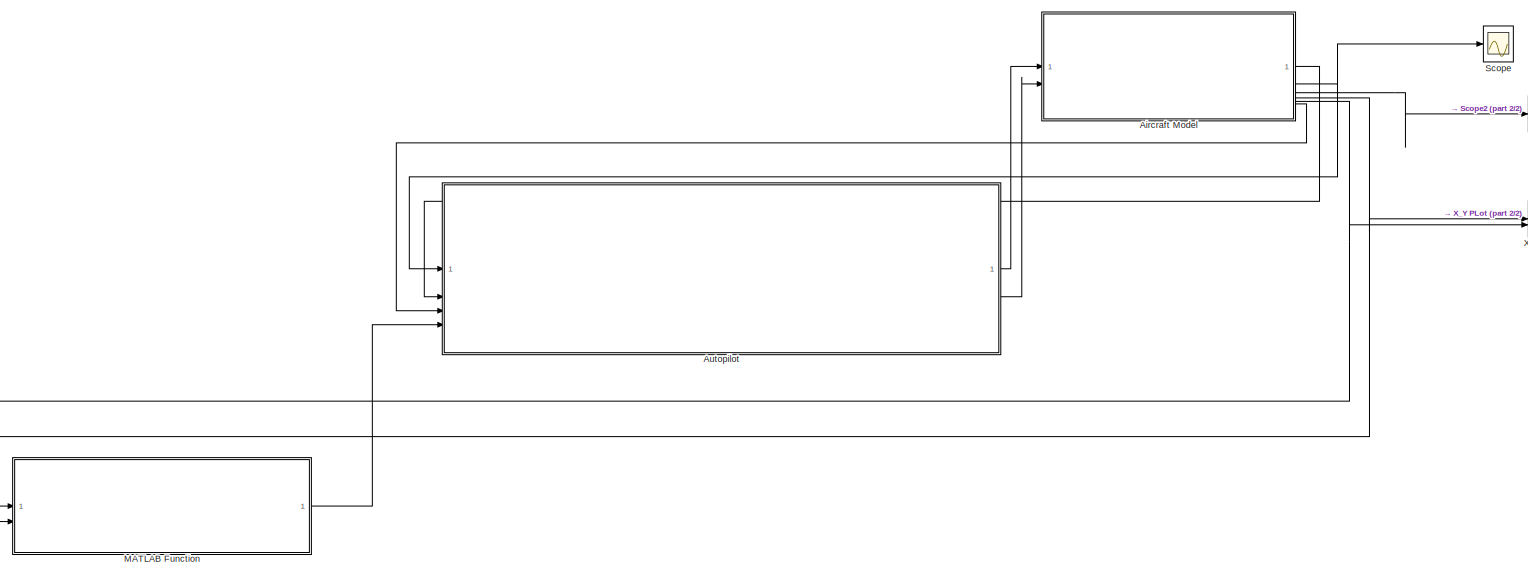
[diagram: root canvas - part 1/2, most of the canvas]
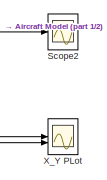
[diagram: root canvas - part 2/2, top right region]
MODEL slx_1c43ff69d4d4
KIND model
CONFIG AbsTol = auto
CONFIG EnableMultiTasking = off
CONFIG FixedStep = auto
CONFIG MaxStep = auto
CONFIG MinStep = auto
CONFIG RelTol = 1e-3
CONFIG SampleTimeConstraint = Unconstrained
CONFIG SolverName = ode45
CONFIG StartTime = 0.0
CONFIG StopTime = 1500
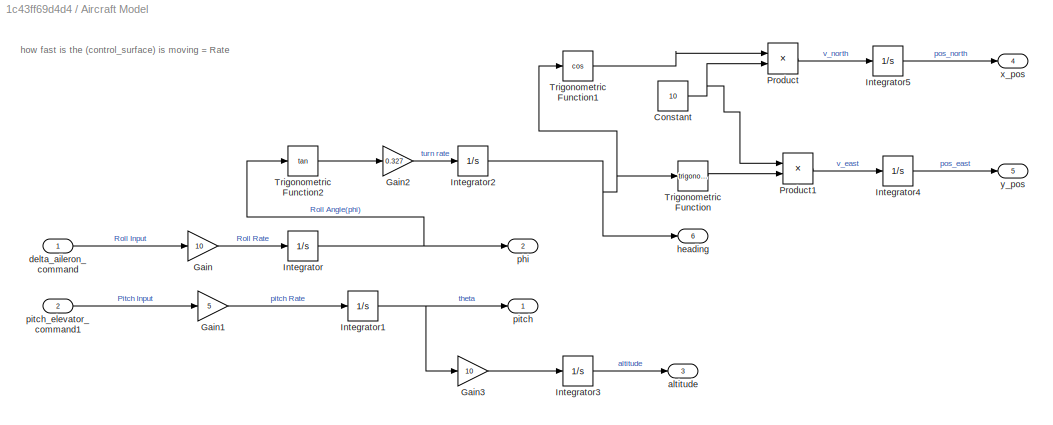
BLOCK [SubSystem] Aircraft Model
BLOCK [Constant] Aircraft Model/Constant
  Value = 10
BLOCK [Gain] Aircraft Model/Gain
  Gain = 10
BLOCK [Gain] Aircraft Model/Gain1
  Gain = 5
BLOCK [Gain] Aircraft Model/Gain2
  Gain = 0.327
BLOCK [Gain] Aircraft Model/Gain3
  Gain = 10
BLOCK [Integrator] Aircraft Model/Integrator
BLOCK [Integrator] Aircraft Model/Integrator1
BLOCK [Integrator] Aircraft Model/Integrator2
BLOCK [Integrator] Aircraft Model/Integrator3
BLOCK [Integrator] Aircraft Model/Integrator4
BLOCK [Integrator] Aircraft Model/Integrator5
BLOCK [Product] Aircraft Model/Product
BLOCK [Product] Aircraft Model/Product1
BLOCK [Trigonometry] Aircraft Model/Trigonometric Function
BLOCK [Trigonometry] Aircraft Model/Trigonometric Function1
  Operator = cos
BLOCK [Trigonometry] Aircraft Model/Trigonometric Function2
  Operator = tan
BLOCK [Outport] Aircraft Model/altitude
  Port = 3
BLOCK [Inport] Aircraft Model/delta_aileron_command
BLOCK [Outport] Aircraft Model/heading
  Port = 6
BLOCK [Outport] Aircraft Model/phi
  Port = 2
BLOCK [Outport] Aircraft Model/pitch
BLOCK [Inport] Aircraft Model/pitch_elevator_command1
  Port = 2
BLOCK [Outport] Aircraft Model/x_pos
  Port = 4
BLOCK [Outport] Aircraft Model/y_pos
  Port = 5
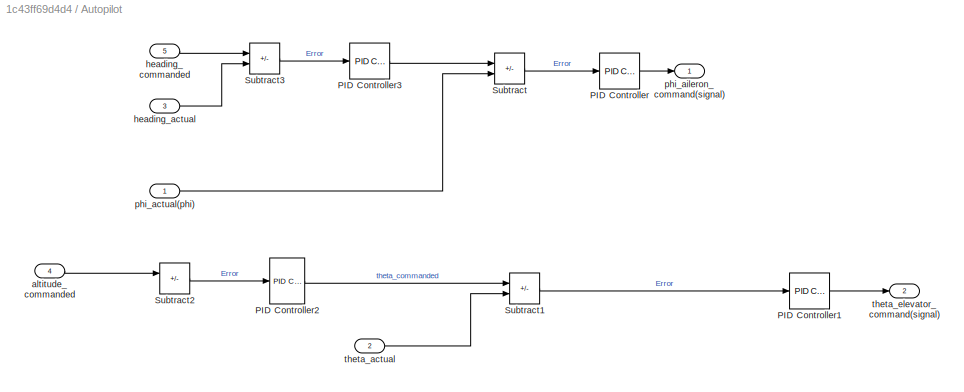
BLOCK [SubSystem] Autopilot
BLOCK [Reference] Autopilot/PID Controller  REF=slpidlib/PID Controller
  LibrarySourceBlock = simulink/Continuous/PID Controller
  SourceBlock = slpidlib/PID Controller
  SourceType = PID 1dof
BLOCK [Reference] Autopilot/PID Controller1  REF=slpidlib/PID Controller
  LibrarySourceBlock = simulink/Continuous/PID Controller
  SourceBlock = slpidlib/PID Controller
  SourceType = PID 1dof
BLOCK [Reference] Autopilot/PID Controller2  REF=slpidlib/PID Controller
  LibrarySourceBlock = simulink/Continuous/PID Controller
  SourceBlock = slpidlib/PID Controller
  SourceType = PID 1dof
BLOCK [Reference] Autopilot/PID Controller3  REF=slpidlib/PID Controller
  LibrarySourceBlock = simulink/Continuous/PID Controller
  SourceBlock = slpidlib/PID Controller
  SourceType = PID 1dof
BLOCK [Sum] Autopilot/Subtract
  IconShape = rectangular
  Inputs = +-
BLOCK [Sum] Autopilot/Subtract1
  IconShape = rectangular
  Inputs = +-
BLOCK [Sum] Autopilot/Subtract2
  IconShape = rectangular
  Inputs = +-
BLOCK [Sum] Autopilot/Subtract3
  IconShape = rectangular
  Inputs = +-
BLOCK [Inport] Autopilot/altitude_commanded
  Port = 4
BLOCK [Inport] Autopilot/heading_actual
  Port = 3
BLOCK [Inport] Autopilot/heading_commanded
  Port = 5
BLOCK [Inport] Autopilot/phi_actual(phi)
BLOCK [Outport] Autopilot/phi_aileron_command(signal)
  NameLocation = right
BLOCK [Inport] Autopilot/theta_actual
  Port = 2
BLOCK [Outport] Autopilot/theta_elevator_command(signal)
  NameLocation = right
  Port = 2
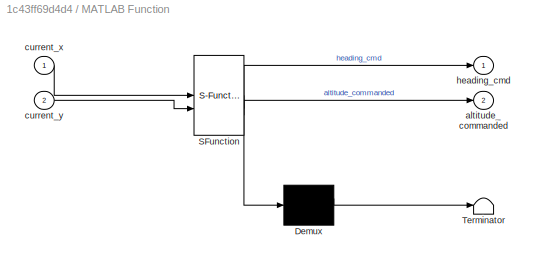
BLOCK [SubSystem] MATLAB Function
  ErrorFcn = Stateflow.Translate.translate
  PermitHierarchicalResolution = ExplicitOnly
  SFBlockType = MATLAB Function
  TreatAsAtomicUnit = on
BLOCK [Demux] MATLAB Function/ Demux 
  Outputs = 1
BLOCK [S-Function] MATLAB Function/ SFunction 
  EnableBusSupport = off
  FunctionName = sf_sfun
  PortCounts = [2 3]
  SFcnIsStateOwnerBlock = off
  SFunctionDeploymentMode = off
  Tag = Stateflow S-Function 2
BLOCK [Terminator] MATLAB Function/ Terminator 
BLOCK [Outport] MATLAB Function/altitude_commanded
  Port = 2
BLOCK [Inport] MATLAB Function/current_x
BLOCK [Inport] MATLAB Function/current_y
  Port = 2
BLOCK [Outport] MATLAB Function/heading_cmd
BLOCK [Scope] Scope
  ActiveDisplayYMaximum = 1
  ActiveDisplayYMinimum = -1
  Floating = off
  GraphicalSettings = {"AxesScalingProperties":{"AlignXAxis":"Center","AlignYAxis":"Center","AutoScaleXAxisLimits":false,"AxesScaling":"Manual","AxesScalingNumUpdates":10,"ExpandOnly":true,"ScaleAxesLimitsAtStop":false,"XAxisDataRange":100,"YAxisDataRange":80},"DisplayProperties":{"ColorOrder":["auto","auto","auto","auto","auto","auto","auto","auto","auto","auto","auto","auto","auto","auto","auto","auto","auto","auto",...<+1950ch>
  MultipleDisplayCache = [{"MaxYLimMag":1,"MaxYLimReal":1,"MinYLimMag":0,"MinYLimReal":-1,"PlotAsMagnitudePhase":false,"ShowGrid":true,"ShowLegend":true,"Title":"%<SignalLabel>","YLabel":""}]
  NumInputPorts = 1
  ScopeFrameLocation = window
  ShowLegend = on
  WasSavedAsWebScope = on
  WindowPosition = [0.000000,36.000000,1536.000000,793.000000,]
BLOCK [Scope] Scope2
  ActiveDisplayYMaximum = 671.14804445895015
  ActiveDisplayYMinimum = -74.572004939883342
  DataLoggingVariableName = ScopeData2
  Floating = off
  GraphicalSettings = {"Style":{"BackgroundColor":[0.12941176470588237,0.12941176470588237,0.12941176470588237],"AxesColor":[0.07058823529411765,0.07058823529411765,0.07058823529411765],"LabelsColor":[0.8509803921568627,0.8509803921568627,0.8509803921568627],"PreserveColors":false,"Visible":[true],"LineStyle":["-"],"LineWidth":[1.5],"BarWidth":[0.9],"LineColor":["auto"],"LineFaceAlpha":[1],"LineEdgeAlpha":[1],"Marker":...<+2023ch>
  MultipleDisplayCache = [{"MaxYLimMag":671.14804445895015,"MaxYLimReal":671.14804445895015,"MinYLimMag":0,"MinYLimReal":-74.572004939883342,"PlotAsMagnitudePhase":false,"ShowGrid":true,"ShowLegend":true,"Title":"%<SignalLabel>","YLabel":""}]
  NumInputPorts = 1
  ScopeFrameLocation = window
  ShowLegend = on
  WasSavedAsWebScope = on
  WindowPosition = [0.000000,36.000000,1536.000000,793.000000,]
BLOCK [Scope] X_Y PLot
  ActiveDisplayYMaximum = 1698.3486849221656
  ActiveDisplayYMinimum = -47.144413180148149
  DataLoggingVariableName = ScopeData1
  Floating = off
  GraphicalSettings = {"AxesScalingProperties":{"AlignXAxis":"Center","AlignYAxis":"Center","AutoScaleXAxisLimits":false,"AxesScaling":"Manual","AxesScalingNumUpdates":10,"ExpandOnly":true,"ScaleAxesLimitsAtStop":false,"XAxisDataRange":100,"YAxisDataRange":80},"DisplayProperties":{"ColorOrder":["auto","auto","auto","auto","auto","auto","auto","auto","auto","auto","auto","auto","auto","auto","auto","auto","auto","auto",...<+2187ch>
  MultipleDisplayCache = [{"MaxYLimMag":1698.3486849221656,"MaxYLimReal":1698.3486849221656,"MinYLimMag":0,"MinYLimReal":-47.144413180148149,"PlotAsMagnitudePhase":false,"ShowGrid":true,"ShowLegend":true,"Title":"%<SignalLabel>","YLabel":""}]
  NumInputPorts = 2
  ScopeFrameLocation = window
  ShowLegend = on
  WasSavedAsWebScope = on
  WindowPosition = [0.000000,36.000000,1536.000000,793.000000,]
ANNOTATION Aircraft Model: how fast is the (control_surface) is moving = Rate
NET Aircraft Model/Constant:1 -> Aircraft Model/Product1:1, Aircraft Model/Product:2
LINE Aircraft Model/Gain1:1 -> Aircraft Model/Integrator1:1
LINE Aircraft Model/Gain2:1 -> Aircraft Model/Integrator2:1
LINE Aircraft Model/Gain3:1 -> Aircraft Model/Integrator3:1
LINE Aircraft Model/Gain:1 -> Aircraft Model/Integrator:1
NET Aircraft Model/Integrator1:1 -> Aircraft Model/Gain3:1, Aircraft Model/pitch:1
NET Aircraft Model/Integrator2:1 -> Aircraft Model/Trigonometric Function1:1, Aircraft Model/Trigonometric Function:1, Aircraft Model/heading:1
LINE Aircraft Model/Integrator3:1 -> Aircraft Model/altitude:1
LINE Aircraft Model/Integrator4:1 -> Aircraft Model/y_pos:1
LINE Aircraft Model/Integrator5:1 -> Aircraft Model/x_pos:1
NET Aircraft Model/Integrator:1 -> Aircraft Model/Trigonometric Function2:1, Aircraft Model/phi:1
LINE Aircraft Model/Product1:1 -> Aircraft Model/Integrator4:1
LINE Aircraft Model/Product:1 -> Aircraft Model/Integrator5:1
LINE Aircraft Model/Trigonometric Function1:1 -> Aircraft Model/Product:1
LINE Aircraft Model/Trigonometric Function2:1 -> Aircraft Model/Gain2:1
LINE Aircraft Model/Trigonometric Function:1 -> Aircraft Model/Product1:2
LINE Aircraft Model/delta_aileron_command:1 -> Aircraft Model/Gain:1
LINE Aircraft Model/pitch_elevator_command1:1 -> Aircraft Model/Gain1:1
LINE Aircraft Model:1 -> Autopilot:2
NET Aircraft Model:2 -> Autopilot:1, Scope:1
LINE Aircraft Model:3 -> Scope2:1
NET Aircraft Model:4 -> MATLAB Function:1, X_Y PLot:1
NET Aircraft Model:5 -> MATLAB Function:2, X_Y PLot:2
LINE Aircraft Model:6 -> Autopilot:3
LINE Autopilot/PID Controller1:1 -> Autopilot/theta_elevator_command(signal):1
LINE Autopilot/PID Controller2:1 -> Autopilot/Subtract1:1
LINE Autopilot/PID Controller3:1 -> Autopilot/Subtract:1
LINE Autopilot/PID Controller:1 -> Autopilot/phi_aileron_command(signal):1
LINE Autopilot/Subtract1:1 -> Autopilot/PID Controller1:1
LINE Autopilot/Subtract2:1 -> Autopilot/PID Controller2:1
LINE Autopilot/Subtract3:1 -> Autopilot/PID Controller3:1
LINE Autopilot/Subtract:1 -> Autopilot/PID Controller:1
LINE Autopilot/altitude_commanded:1 -> Autopilot/Subtract2:1
LINE Autopilot/heading_actual:1 -> Autopilot/Subtract3:2
LINE Autopilot/heading_commanded:1 -> Autopilot/Subtract3:1
LINE Autopilot/phi_actual(phi):1 -> Autopilot/Subtract:2
LINE Autopilot/theta_actual:1 -> Autopilot/Subtract1:2
LINE Autopilot:1 -> Aircraft Model:1
LINE Autopilot:2 -> Aircraft Model:2
LINE MATLAB Function:1 -> Autopilot:5
note: NET lines group one-source signal fan-out (src -> all destinations, sorted); 1:1 wires keep LINE
CHART MATLAB Function states=1 transitions=1
  STATE_LABEL 'eML_blk_kernel()'
  STATE_LABEL 'SCRIPT:\nfunction [heading_cmd,altitude_commanded] = waypoint_follower(current_x,current_y)\n\npersistent waypoints;\npersistent current_waypoint_index;\n\nif isempty(waypoints)\nwaypoints = [    0,    0,   200;  % 1. Start in the valley\n              1000,  500,   800;  % 2. Climb steeply up the ridge\n              2000,    0,   800;  % 3. Fly along the ridge crest\n              3000,  500,   300;  % 4....<+837ch>'
CHART  states=0 transitions=0
